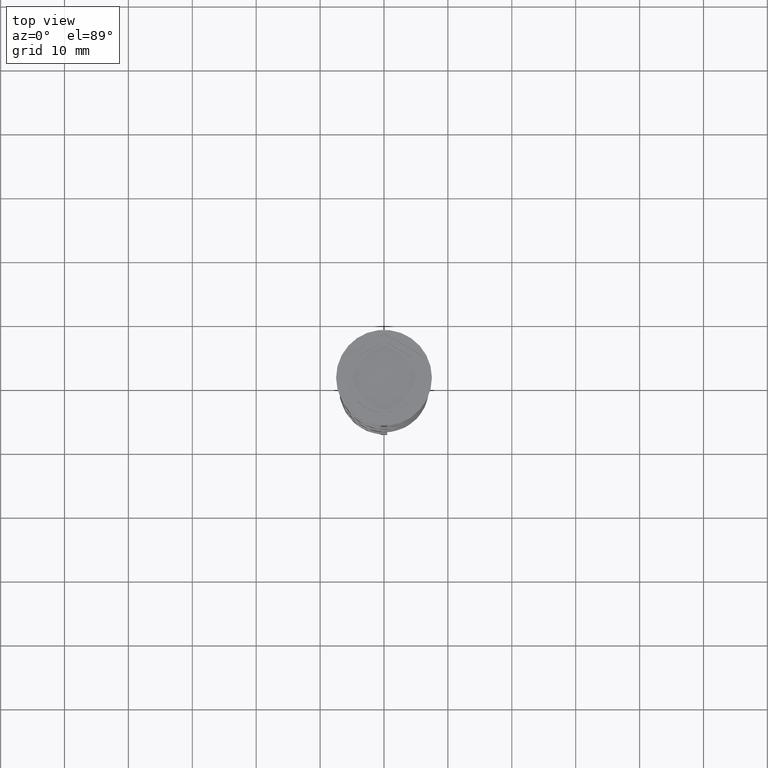
[diagram: clean part render]
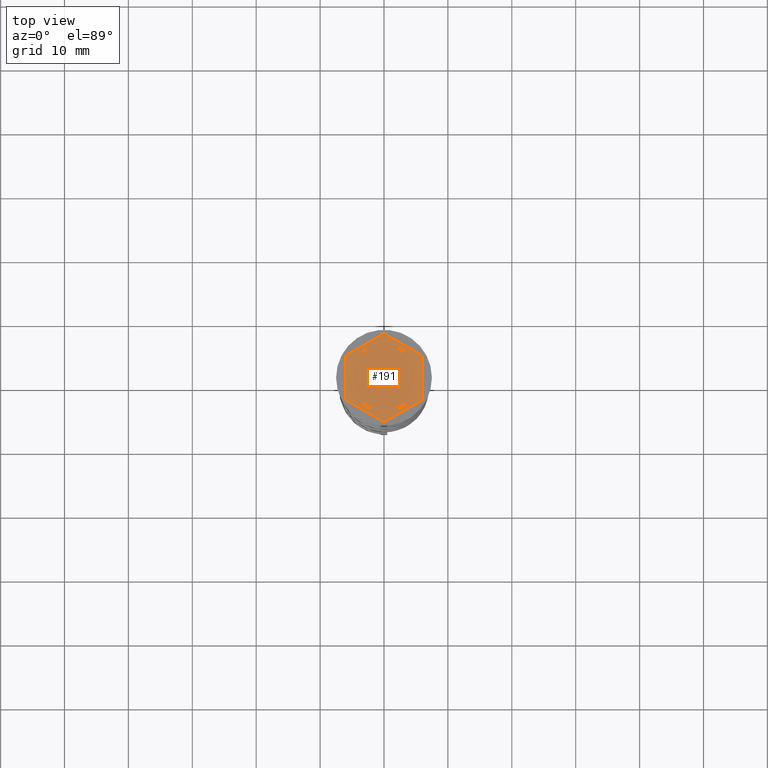
[diagram: same view with one face highlighted and labeled with its STEP entity id]
A machine part, top view. The second image highlights one B-rep face of the part: STEP entity #191.
In plain terms, the highlighted planar face has unit normal (0, 0, 1).
Its self-contained STEP definition (entity closure, byte-faithful):
#14 = CARTESIAN_POINT ( 'NONE',  ( -0.5156865167015569629, -5.475770942661155161, -1.000000000000000888 ) ) ;
#30 = FACE_BOUND ( 'NONE', #1148, .T. ) ;
#50 = VECTOR ( 'NONE', #2155, 1000.000000000000000 ) ;
#108 = DIRECTION ( 'NONE',  ( 1.000000000000000000, 0.000000000000000000, 0.000000000000000000 ) ) ;
#116 = VERTEX_POINT ( 'NONE', #14 ) ;
#121 = EDGE_CURVE ( 'NONE', #2032, #2547, #602, .T. ) ;
#136 = ORIENTED_EDGE ( 'NONE', *, *, #2819, .F. ) ;
#147 = CARTESIAN_POINT ( 'NONE',  ( 4.484313483298442371, 3.184483095183238355, -1.000000000000000888 ) ) ;
#191 = ADVANCED_FACE ( 'NONE', ( #30, #2241, #3345, #1712, #1964, #1146, #1986 ), #2257, .T. ) ;
#207 = ORIENTED_EDGE ( 'NONE', *, *, #1996, .T. ) ;
#212 = AXIS2_PLACEMENT_3D ( 'NONE', #1134, #1422, #2232 ) ;
#295 = LINE ( 'NONE', #1401, #2502 ) ;
#340 = CARTESIAN_POINT ( 'NONE',  ( 0.000000000000000000, 0.000000000000000000, -1.000000000000000000 ) ) ;
#355 = ORIENTED_EDGE ( 'NONE', *, *, #2881, .T. ) ;
#395 = CARTESIAN_POINT ( 'NONE',  ( 0.000000000000000000, 0.000000000000000000, -1.000000000000000000 ) ) ;
#417 = CARTESIAN_POINT ( 'NONE',  ( -4.280685092543093048E-16, -6.928203230275507885, -1.000000000000000000 ) ) ;
#424 = EDGE_CURVE ( 'NONE', #1296, #1418, #1638, .T. ) ;
#451 = CARTESIAN_POINT ( 'NONE',  ( -6.000000000000000000, 3.464101615137752166, -1.000000000000000000 ) ) ;
#486 = CARTESIAN_POINT ( 'NONE',  ( 5.000000000000000888, 2.291287847477922135, -1.000000000000000888 ) ) ;
#493 = CARTESIAN_POINT ( 'NONE',  ( -1.734723475976807094E-15, -5.773502691896258199, -1.000000000000000888 ) ) ;
#534 = LINE ( 'NONE', #3038, #1216 ) ;
#551 = DIRECTION ( 'NONE',  ( 0.8660254037844385966, 0.5000000000000001110, -0.000000000000000000 ) ) ;
#589 = ORIENTED_EDGE ( 'NONE', *, *, #2896, .F. ) ;
#602 = LINE ( 'NONE', #1724, #2593 ) ;
#605 = VERTEX_POINT ( 'NONE', #2782 ) ;
#634 = EDGE_CURVE ( 'NONE', #2650, #1343, #2488, .T. ) ;
#656 = EDGE_CURVE ( 'NONE', #3188, #3042, #2428, .T. ) ;
#673 = CIRCLE ( 'NONE', #2601, 5.500000000000001776 ) ;
#743 = VERTEX_POINT ( 'NONE', #2788 ) ;
#757 = LINE ( 'NONE', #2939, #2495 ) ;
#781 = DIRECTION ( 'NONE',  ( 0.8660254037844388186, -0.4999999999999997224, 0.000000000000000000 ) ) ;
#785 = ORIENTED_EDGE ( 'NONE', *, *, #1674, .F. ) ;
#875 = EDGE_LOOP ( 'NONE', ( #1646, #2764 ) ) ;
#885 = ORIENTED_EDGE ( 'NONE', *, *, #656, .T. ) ;
#890 = DIRECTION ( 'NONE',  ( 0.8660254037844385966, 0.5000000000000000000, 0.000000000000000000 ) ) ;
#918 = AXIS2_PLACEMENT_3D ( 'NONE', #1583, #1874, #108 ) ;
#922 = AXIS2_PLACEMENT_3D ( 'NONE', #340, #1457, #2785 ) ;
#962 = LINE ( 'NONE', #3160, #3533 ) ;
#1031 = CARTESIAN_POINT ( 'NONE',  ( 6.000000000000000000, 3.464101615137753942, -1.000000000000000000 ) ) ;
#1040 = CIRCLE ( 'NONE', #922, 5.500000000000001776 ) ;
#1062 = VERTEX_POINT ( 'NONE', #1293 ) ;
#1090 = VERTEX_POINT ( 'NONE', #1822 ) ;
#1110 = VECTOR ( 'NONE', #3326, 1000.000000000000114 ) ;
#1134 = CARTESIAN_POINT ( 'NONE',  ( 0.000000000000000000, 0.000000000000000000, -1.000000000000000000 ) ) ;
#1146 = FACE_BOUND ( 'NONE', #2698, .T. ) ;
#1148 = EDGE_LOOP ( 'NONE', ( #2227, #136 ) ) ;
#1164 = CARTESIAN_POINT ( 'NONE',  ( 4.999999999999999112, -2.291287847477924355, -1.000000000000000888 ) ) ;
#1216 = VECTOR ( 'NONE', #2725, 1000.000000000000227 ) ;
#1240 = CARTESIAN_POINT ( 'NONE',  ( 0.000000000000000000, 0.000000000000000000, -1.000000000000000000 ) ) ;
#1242 = EDGE_CURVE ( 'NONE', #2547, #2032, #1495, .T. ) ;
#1293 = CARTESIAN_POINT ( 'NONE',  ( -5.000000000000000888, -2.291287847477921247, -1.000000000000000888 ) ) ;
#1296 = VERTEX_POINT ( 'NONE', #2179 ) ;
#1312 = LINE ( 'NONE', #1031, #50 ) ;
#1326 = ORIENTED_EDGE ( 'NONE', *, *, #2024, .F. ) ;
#1343 = VERTEX_POINT ( 'NONE', #2807 ) ;
#1401 = CARTESIAN_POINT ( 'NONE',  ( -6.000000000000000000, -3.464101615137755719, -1.000000000000000000 ) ) ;
#1418 = VERTEX_POINT ( 'NONE', #2391 ) ;
#1421 = EDGE_CURVE ( 'NONE', #1418, #1296, #1682, .T. ) ;
#1422 = DIRECTION ( 'NONE',  ( 0.000000000000000000, 0.000000000000000000, 1.000000000000000000 ) ) ;
#1425 = EDGE_CURVE ( 'NONE', #1062, #3470, #962, .T. ) ;
#1453 = VECTOR ( 'NONE', #890, 1000.000000000000227 ) ;
#1457 = DIRECTION ( 'NONE',  ( 0.000000000000000000, 0.000000000000000000, 1.000000000000000000 ) ) ;
#1468 = EDGE_CURVE ( 'NONE', #743, #605, #673, .T. ) ;
#1471 = CARTESIAN_POINT ( 'NONE',  ( -6.000000000000000000, 3.464101615137752166, -1.000000000000000000 ) ) ;
#1495 = CIRCLE ( 'NONE', #2780, 5.500000000000001776 ) ;
#1500 = CARTESIAN_POINT ( 'NONE',  ( 5.999999999999998224, -3.464101615137753942, -1.000000000000000000 ) ) ;
#1514 = DIRECTION ( 'NONE',  ( 0.000000000000000000, 0.000000000000000000, 1.000000000000000000 ) ) ;
#1518 = CARTESIAN_POINT ( 'NONE',  ( -5.500000000000001776, 0.000000000000000000, -1.000000000000000000 ) ) ;
#1520 = VERTEX_POINT ( 'NONE', #2878 ) ;
#1583 = CARTESIAN_POINT ( 'NONE',  ( 0.000000000000000000, 0.000000000000000000, -1.000000000000000000 ) ) ;
#1638 = LINE ( 'NONE', #493, #1844 ) ;
#1646 = ORIENTED_EDGE ( 'NONE', *, *, #1242, .F. ) ;
#1663 = ORIENTED_EDGE ( 'NONE', *, *, #3278, .T. ) ;
#1674 = EDGE_CURVE ( 'NONE', #2255, #116, #3477, .T. ) ;
#1682 = CIRCLE ( 'NONE', #2146, 5.500000000000001776 ) ;
#1712 = FACE_BOUND ( 'NONE', #2491, .T. ) ;
#1724 = CARTESIAN_POINT ( 'NONE',  ( 4.999999999999999112, -2.886751345948130432, -1.000000000000000888 ) ) ;
#1777 = LINE ( 'NONE', #1500, #3313 ) ;
#1810 = DIRECTION ( 'NONE',  ( 0.000000000000000000, 1.000000000000000000, 0.000000000000000000 ) ) ;
#1822 = CARTESIAN_POINT ( 'NONE',  ( 6.000000000000000000, 3.464101615137753942, -1.000000000000000000 ) ) ;
#1827 = DIRECTION ( 'NONE',  ( 1.000000000000000000, 0.000000000000000000, 0.000000000000000000 ) ) ;
#1844 = VECTOR ( 'NONE', #3286, 1000.000000000000114 ) ;
#1873 = CARTESIAN_POINT ( 'NONE',  ( -5.000000000000000888, 2.291287847477921247, -1.000000000000000888 ) ) ;
#1874 = DIRECTION ( 'NONE',  ( 0.000000000000000000, 0.000000000000000000, 1.000000000000000000 ) ) ;
#1903 = CARTESIAN_POINT ( 'NONE',  ( 4.336808689942017736E-16, 5.773502691896259087, -1.000000000000000888 ) ) ;
#1924 = ORIENTED_EDGE ( 'NONE', *, *, #1468, .F. ) ;
#1964 = FACE_BOUND ( 'NONE', #2741, .T. ) ;
#1972 = VERTEX_POINT ( 'NONE', #2982 ) ;
#1986 = FACE_OUTER_BOUND ( 'NONE', #3035, .T. ) ;
#1996 = EDGE_CURVE ( 'NONE', #1090, #1972, #1312, .T. ) ;
#2005 = EDGE_CURVE ( 'NONE', #116, #2255, #757, .T. ) ;
#2024 = EDGE_CURVE ( 'NONE', #2621, #1062, #2149, .T. ) ;
#2032 = VERTEX_POINT ( 'NONE', #486 ) ;
#2146 = AXIS2_PLACEMENT_3D ( 'NONE', #1240, #3519, #1827 ) ;
#2149 = CIRCLE ( 'NONE', #918, 5.500000000000001776 ) ;
#2155 = DIRECTION ( 'NONE',  ( -0.8660254037844387076, 0.4999999999999998335, 0.000000000000000000 ) ) ;
#2158 = ORIENTED_EDGE ( 'NONE', *, *, #1425, .F. ) ;
#2161 = DIRECTION ( 'NONE',  ( 1.000000000000000000, 0.000000000000000000, 0.000000000000000000 ) ) ;
#2179 = CARTESIAN_POINT ( 'NONE',  ( 4.484313483298445036, -3.184483095183233026, -1.000000000000000888 ) ) ;
#2197 = CARTESIAN_POINT ( 'NONE',  ( 0.000000000000000000, 0.000000000000000000, -1.000000000000000000 ) ) ;
#2202 = CARTESIAN_POINT ( 'NONE',  ( 5.000000000000000888, 2.886751345948130876, -1.000000000000000888 ) ) ;
#2227 = ORIENTED_EDGE ( 'NONE', *, *, #634, .F. ) ;
#2232 = DIRECTION ( 'NONE',  ( 1.000000000000000000, 0.000000000000000000, 0.000000000000000000 ) ) ;
#2241 = FACE_BOUND ( 'NONE', #875, .T. ) ;
#2252 = ORIENTED_EDGE ( 'NONE', *, *, #2560, .T. ) ;
#2255 = VERTEX_POINT ( 'NONE', #3368 ) ;
#2257 = PLANE ( 'NONE',  #2714 ) ;
#2290 = DIRECTION ( 'NONE',  ( 2.503857664561932376E-16, 1.000000000000000000, 0.000000000000000000 ) ) ;
#2331 = DIRECTION ( 'NONE',  ( -0.8660254037844385966, 0.5000000000000001110, 0.000000000000000000 ) ) ;
#2391 = CARTESIAN_POINT ( 'NONE',  ( 0.5156865167015526330, -5.475770942661155161, -1.000000000000000888 ) ) ;
#2416 = EDGE_LOOP ( 'NONE', ( #2795, #3002 ) ) ;
#2428 = LINE ( 'NONE', #451, #3412 ) ;
#2488 = CIRCLE ( 'NONE', #212, 5.500000000000001776 ) ;
#2491 = EDGE_LOOP ( 'NONE', ( #785, #3060 ) ) ;
#2495 = VECTOR ( 'NONE', #2331, 1000.000000000000000 ) ;
#2502 = VECTOR ( 'NONE', #781, 1000.000000000000114 ) ;
#2547 = VERTEX_POINT ( 'NONE', #1164 ) ;
#2551 = CARTESIAN_POINT ( 'NONE',  ( -4.280685092543093048E-16, -6.928203230275507885, -1.000000000000000000 ) ) ;
#2560 = EDGE_CURVE ( 'NONE', #1520, #1090, #1777, .T. ) ;
#2593 = VECTOR ( 'NONE', #2824, 1000.000000000000000 ) ;
#2601 = AXIS2_PLACEMENT_3D ( 'NONE', #395, #1514, #3501 ) ;
#2621 = VERTEX_POINT ( 'NONE', #1518 ) ;
#2650 = VERTEX_POINT ( 'NONE', #147 ) ;
#2662 = DIRECTION ( 'NONE',  ( 1.000000000000000000, 0.000000000000000000, -0.000000000000000000 ) ) ;
#2679 = DIRECTION ( 'NONE',  ( 0.000000000000000000, -1.000000000000000000, 0.000000000000000000 ) ) ;
#2696 = VERTEX_POINT ( 'NONE', #417 ) ;
#2698 = EDGE_LOOP ( 'NONE', ( #1924, #589 ) ) ;
#2714 = AXIS2_PLACEMENT_3D ( 'NONE', #2899, #3461, #2662 ) ;
#2718 = ORIENTED_EDGE ( 'NONE', *, *, #3293, .F. ) ;
#2725 = DIRECTION ( 'NONE',  ( -0.8660254037844385966, -0.4999999999999998890, 0.000000000000000000 ) ) ;
#2741 = EDGE_LOOP ( 'NONE', ( #2718, #2158, #1326 ) ) ;
#2764 = ORIENTED_EDGE ( 'NONE', *, *, #121, .F. ) ;
#2780 = AXIS2_PLACEMENT_3D ( 'NONE', #2197, #3594, #2161 ) ;
#2782 = CARTESIAN_POINT ( 'NONE',  ( -4.484313483298445036, 3.184483095183233470, -1.000000000000000888 ) ) ;
#2785 = DIRECTION ( 'NONE',  ( 1.000000000000000000, 0.000000000000000000, 0.000000000000000000 ) ) ;
#2788 = CARTESIAN_POINT ( 'NONE',  ( -0.5156865167015569629, 5.475770942661155161, -1.000000000000000888 ) ) ;
#2794 = LINE ( 'NONE', #2202, #1110 ) ;
#2795 = ORIENTED_EDGE ( 'NONE', *, *, #1421, .F. ) ;
#2807 = CARTESIAN_POINT ( 'NONE',  ( 0.5156865167015596274, 5.475770942661155161, -1.000000000000000888 ) ) ;
#2812 = ORIENTED_EDGE ( 'NONE', *, *, #2925, .T. ) ;
#2819 = EDGE_CURVE ( 'NONE', #1343, #2650, #2794, .T. ) ;
#2824 = DIRECTION ( 'NONE',  ( -3.004629197474317076E-16, -1.000000000000000000, 0.000000000000000000 ) ) ;
#2850 = DIRECTION ( 'NONE',  ( 1.000000000000000000, 0.000000000000000000, 0.000000000000000000 ) ) ;
#2878 = CARTESIAN_POINT ( 'NONE',  ( 5.999999999999998224, -3.464101615137753942, -1.000000000000000000 ) ) ;
#2881 = EDGE_CURVE ( 'NONE', #1972, #3188, #534, .T. ) ;
#2882 = DIRECTION ( 'NONE',  ( 0.000000000000000000, 0.000000000000000000, 1.000000000000000000 ) ) ;
#2896 = EDGE_CURVE ( 'NONE', #605, #743, #3053, .T. ) ;
#2899 = CARTESIAN_POINT ( 'NONE',  ( 0.000000000000000000, 0.000000000000000000, -1.000000000000000000 ) ) ;
#2925 = EDGE_CURVE ( 'NONE', #3042, #2696, #295, .T. ) ;
#2939 = CARTESIAN_POINT ( 'NONE',  ( -5.000000000000000888, -2.886751345948129099, -1.000000000000000888 ) ) ;
#2982 = CARTESIAN_POINT ( 'NONE',  ( 0.000000000000000000, 6.928203230275506996, -1.000000000000000000 ) ) ;
#3002 = ORIENTED_EDGE ( 'NONE', *, *, #424, .F. ) ;
#3035 = EDGE_LOOP ( 'NONE', ( #207, #355, #885, #2812, #1663, #2252 ) ) ;
#3038 = CARTESIAN_POINT ( 'NONE',  ( 0.000000000000000000, 6.928203230275506996, -1.000000000000000000 ) ) ;
#3042 = VERTEX_POINT ( 'NONE', #3516 ) ;
#3053 = LINE ( 'NONE', #1903, #3485 ) ;
#3060 = ORIENTED_EDGE ( 'NONE', *, *, #2005, .F. ) ;
#3160 = CARTESIAN_POINT ( 'NONE',  ( -5.000000000000000888, 2.886751345948129099, -1.000000000000000888 ) ) ;
#3188 = VERTEX_POINT ( 'NONE', #1471 ) ;
#3278 = EDGE_CURVE ( 'NONE', #2696, #1520, #3382, .T. ) ;
#3286 = DIRECTION ( 'NONE',  ( -0.8660254037844387076, -0.4999999999999997224, 0.000000000000000000 ) ) ;
#3293 = EDGE_CURVE ( 'NONE', #3470, #2621, #1040, .T. ) ;
#3313 = VECTOR ( 'NONE', #2290, 1000.000000000000000 ) ;
#3326 = DIRECTION ( 'NONE',  ( 0.8660254037844387076, -0.4999999999999998335, 0.000000000000000000 ) ) ;
#3345 = FACE_BOUND ( 'NONE', #2416, .T. ) ;
#3368 = CARTESIAN_POINT ( 'NONE',  ( -4.484313483298445036, -3.184483095183233470, -1.000000000000000888 ) ) ;
#3382 = LINE ( 'NONE', #2551, #1453 ) ;
#3395 = CARTESIAN_POINT ( 'NONE',  ( 0.000000000000000000, 0.000000000000000000, -1.000000000000000000 ) ) ;
#3412 = VECTOR ( 'NONE', #2679, 1000.000000000000000 ) ;
#3461 = DIRECTION ( 'NONE',  ( 0.000000000000000000, 0.000000000000000000, 1.000000000000000000 ) ) ;
#3470 = VERTEX_POINT ( 'NONE', #1873 ) ;
#3477 = CIRCLE ( 'NONE', #3544, 5.500000000000001776 ) ;
#3485 = VECTOR ( 'NONE', #551, 1000.000000000000000 ) ;
#3501 = DIRECTION ( 'NONE',  ( 1.000000000000000000, 0.000000000000000000, 0.000000000000000000 ) ) ;
#3516 = CARTESIAN_POINT ( 'NONE',  ( -6.000000000000000000, -3.464101615137755719, -1.000000000000000000 ) ) ;
#3519 = DIRECTION ( 'NONE',  ( 0.000000000000000000, 0.000000000000000000, 1.000000000000000000 ) ) ;
#3533 = VECTOR ( 'NONE', #1810, 1000.000000000000000 ) ;
#3544 = AXIS2_PLACEMENT_3D ( 'NONE', #3395, #2882, #2850 ) ;
#3594 = DIRECTION ( 'NONE',  ( 0.000000000000000000, 0.000000000000000000, 1.000000000000000000 ) ) ;